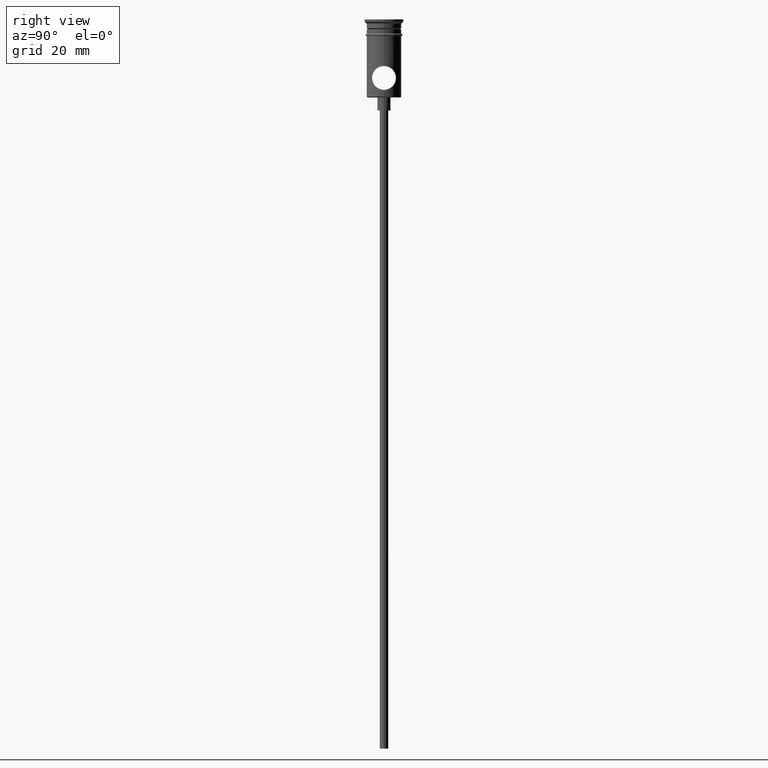
[diagram: clean part render]
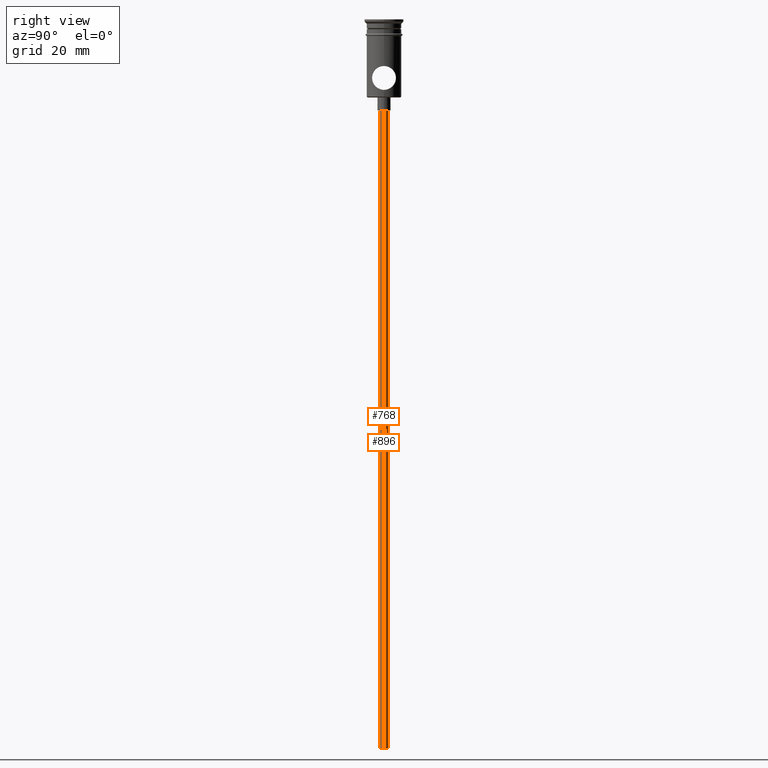
[diagram: same view with one multi-face feature highlighted, each face labeled with its STEP entity id]
A machine part, right view. The highlighted faces form ONE feature: a constant-radius fillet chain: 2 tangent blend faces with common blend radius 1 mm. The faces share edges in the B-rep.
Their STEP definitions:
[1] entity #896 (Cylinder):
#50 = CARTESIAN_POINT ( 'NONE',  ( -0.9999999999999997780, 1.224646799147352961E-16, -167.9999999999999716 ) ) ;
#53 = CARTESIAN_POINT ( 'NONE',  ( 0.000000000000000000, 0.000000000000000000, -20.99999999999999645 ) ) ;
#248 = FACE_OUTER_BOUND ( 'NONE', #1119, .T. ) ;
#381 = EDGE_CURVE ( 'NONE', #521, #786, #846, .T. ) ;
#415 = AXIS2_PLACEMENT_3D ( 'NONE', #1315, #1201, #669 ) ;
#442 = EDGE_CURVE ( 'NONE', #886, #1103, #727, .T. ) ;
#452 = AXIS2_PLACEMENT_3D ( 'NONE', #677, #1142, #603 ) ;
#502 = DIRECTION ( 'NONE',  ( -1.000000000000000000, 0.000000000000000000, 0.000000000000000000 ) ) ;
#521 = VERTEX_POINT ( 'NONE', #1035 ) ;
#542 = CYLINDRICAL_SURFACE ( 'NONE', #415, 0.9999999999999997780 ) ;
#551 = DIRECTION ( 'NONE',  ( -0.000000000000000000, -0.000000000000000000, 1.000000000000000000 ) ) ;
#603 = DIRECTION ( 'NONE',  ( -1.000000000000000000, 0.000000000000000000, 0.000000000000000000 ) ) ;
#627 = ORIENTED_EDGE ( 'NONE', *, *, #442, .F. ) ;
#669 = DIRECTION ( 'NONE',  ( 1.000000000000000000, 0.000000000000000000, 0.000000000000000000 ) ) ;
#677 = CARTESIAN_POINT ( 'NONE',  ( 0.000000000000000000, 0.000000000000000000, -167.9999999999999716 ) ) ;
#727 = CIRCLE ( 'NONE', #452, 0.9999999999999997780 ) ;
#735 = CARTESIAN_POINT ( 'NONE',  ( 0.9999999999999997780, 0.000000000000000000, -167.9999999999999716 ) ) ;
#786 = VERTEX_POINT ( 'NONE', #887 ) ;
#807 = ORIENTED_EDGE ( 'NONE', *, *, #1238, .F. ) ;
#846 = CIRCLE ( 'NONE', #1203, 0.9999999999999997780 ) ;
#872 = CARTESIAN_POINT ( 'NONE',  ( -0.9999999999999997780, 1.224646799147352961E-16, -167.9999999999999716 ) ) ;
#886 = VERTEX_POINT ( 'NONE', #872 ) ;
#887 = CARTESIAN_POINT ( 'NONE',  ( 0.9999999999999997780, 0.000000000000000000, -20.99999999999999645 ) ) ;
#896 = ADVANCED_FACE ( 'NONE', ( #248 ), #542, .T. ) ;
#907 = EDGE_CURVE ( 'NONE', #886, #521, #1417, .T. ) ;
#933 = ORIENTED_EDGE ( 'NONE', *, *, #381, .T. ) ;
#1035 = CARTESIAN_POINT ( 'NONE',  ( -0.9999999999999997780, 1.224646799147352961E-16, -20.99999999999999645 ) ) ;
#1103 = VERTEX_POINT ( 'NONE', #735 ) ;
#1119 = EDGE_LOOP ( 'NONE', ( #627, #1288, #933, #807 ) ) ;
#1142 = DIRECTION ( 'NONE',  ( 0.000000000000000000, 0.000000000000000000, -1.000000000000000000 ) ) ;
#1201 = DIRECTION ( 'NONE',  ( -0.000000000000000000, -0.000000000000000000, 1.000000000000000000 ) ) ;
#1203 = AXIS2_PLACEMENT_3D ( 'NONE', #53, #1344, #502 ) ;
#1238 = EDGE_CURVE ( 'NONE', #1103, #786, #1292, .T. ) ;
#1255 = VECTOR ( 'NONE', #551, 1000.000000000000000 ) ;
#1288 = ORIENTED_EDGE ( 'NONE', *, *, #907, .T. ) ;
#1292 = LINE ( 'NONE', #1298, #1255 ) ;
#1298 = CARTESIAN_POINT ( 'NONE',  ( 0.9999999999999997780, 0.000000000000000000, -167.9999999999999716 ) ) ;
#1315 = CARTESIAN_POINT ( 'NONE',  ( 0.000000000000000000, 0.000000000000000000, -167.9999999999999716 ) ) ;
#1344 = DIRECTION ( 'NONE',  ( 0.000000000000000000, 0.000000000000000000, -1.000000000000000000 ) ) ;
#1347 = VECTOR ( 'NONE', #1352, 1000.000000000000000 ) ;
#1352 = DIRECTION ( 'NONE',  ( -0.000000000000000000, -0.000000000000000000, 1.000000000000000000 ) ) ;
#1417 = LINE ( 'NONE', #50, #1347 ) ;
[2] entity #768 (Cylinder):
#15 = EDGE_LOOP ( 'NONE', ( #712, #1024, #1231, #651 ) ) ;
#50 = CARTESIAN_POINT ( 'NONE',  ( -0.9999999999999997780, 1.224646799147352961E-16, -167.9999999999999716 ) ) ;
#185 = CYLINDRICAL_SURFACE ( 'NONE', #752, 0.9999999999999997780 ) ;
#195 = DIRECTION ( 'NONE',  ( 1.000000000000000000, 0.000000000000000000, 0.000000000000000000 ) ) ;
#284 = CIRCLE ( 'NONE', #1068, 0.9999999999999997780 ) ;
#300 = CARTESIAN_POINT ( 'NONE',  ( 0.000000000000000000, 0.000000000000000000, -167.9999999999999716 ) ) ;
#391 = CIRCLE ( 'NONE', #1048, 0.9999999999999997780 ) ;
#521 = VERTEX_POINT ( 'NONE', #1035 ) ;
#551 = DIRECTION ( 'NONE',  ( -0.000000000000000000, -0.000000000000000000, 1.000000000000000000 ) ) ;
#580 = DIRECTION ( 'NONE',  ( 0.000000000000000000, 0.000000000000000000, -1.000000000000000000 ) ) ;
#581 = EDGE_CURVE ( 'NONE', #1103, #886, #284, .T. ) ;
#591 = DIRECTION ( 'NONE',  ( 0.000000000000000000, 0.000000000000000000, -1.000000000000000000 ) ) ;
#651 = ORIENTED_EDGE ( 'NONE', *, *, #954, .T. ) ;
#712 = ORIENTED_EDGE ( 'NONE', *, *, #907, .F. ) ;
#721 = FACE_OUTER_BOUND ( 'NONE', #15, .T. ) ;
#735 = CARTESIAN_POINT ( 'NONE',  ( 0.9999999999999997780, 0.000000000000000000, -167.9999999999999716 ) ) ;
#752 = AXIS2_PLACEMENT_3D ( 'NONE', #300, #1165, #195 ) ;
#768 = ADVANCED_FACE ( 'NONE', ( #721 ), #185, .T. ) ;
#786 = VERTEX_POINT ( 'NONE', #887 ) ;
#872 = CARTESIAN_POINT ( 'NONE',  ( -0.9999999999999997780, 1.224646799147352961E-16, -167.9999999999999716 ) ) ;
#886 = VERTEX_POINT ( 'NONE', #872 ) ;
#887 = CARTESIAN_POINT ( 'NONE',  ( 0.9999999999999997780, 0.000000000000000000, -20.99999999999999645 ) ) ;
#903 = DIRECTION ( 'NONE',  ( -1.000000000000000000, 0.000000000000000000, 0.000000000000000000 ) ) ;
#907 = EDGE_CURVE ( 'NONE', #886, #521, #1417, .T. ) ;
#954 = EDGE_CURVE ( 'NONE', #786, #521, #391, .T. ) ;
#1024 = ORIENTED_EDGE ( 'NONE', *, *, #581, .F. ) ;
#1035 = CARTESIAN_POINT ( 'NONE',  ( -0.9999999999999997780, 1.224646799147352961E-16, -20.99999999999999645 ) ) ;
#1048 = AXIS2_PLACEMENT_3D ( 'NONE', #1106, #580, #903 ) ;
#1068 = AXIS2_PLACEMENT_3D ( 'NONE', #1249, #591, #1220 ) ;
#1103 = VERTEX_POINT ( 'NONE', #735 ) ;
#1106 = CARTESIAN_POINT ( 'NONE',  ( 0.000000000000000000, 0.000000000000000000, -20.99999999999999645 ) ) ;
#1165 = DIRECTION ( 'NONE',  ( -0.000000000000000000, -0.000000000000000000, 1.000000000000000000 ) ) ;
#1220 = DIRECTION ( 'NONE',  ( -1.000000000000000000, 0.000000000000000000, 0.000000000000000000 ) ) ;
#1231 = ORIENTED_EDGE ( 'NONE', *, *, #1238, .T. ) ;
#1238 = EDGE_CURVE ( 'NONE', #1103, #786, #1292, .T. ) ;
#1249 = CARTESIAN_POINT ( 'NONE',  ( 0.000000000000000000, 0.000000000000000000, -167.9999999999999716 ) ) ;
#1255 = VECTOR ( 'NONE', #551, 1000.000000000000000 ) ;
#1292 = LINE ( 'NONE', #1298, #1255 ) ;
#1298 = CARTESIAN_POINT ( 'NONE',  ( 0.9999999999999997780, 0.000000000000000000, -167.9999999999999716 ) ) ;
#1347 = VECTOR ( 'NONE', #1352, 1000.000000000000000 ) ;
#1352 = DIRECTION ( 'NONE',  ( -0.000000000000000000, -0.000000000000000000, 1.000000000000000000 ) ) ;
#1417 = LINE ( 'NONE', #50, #1347 ) ;